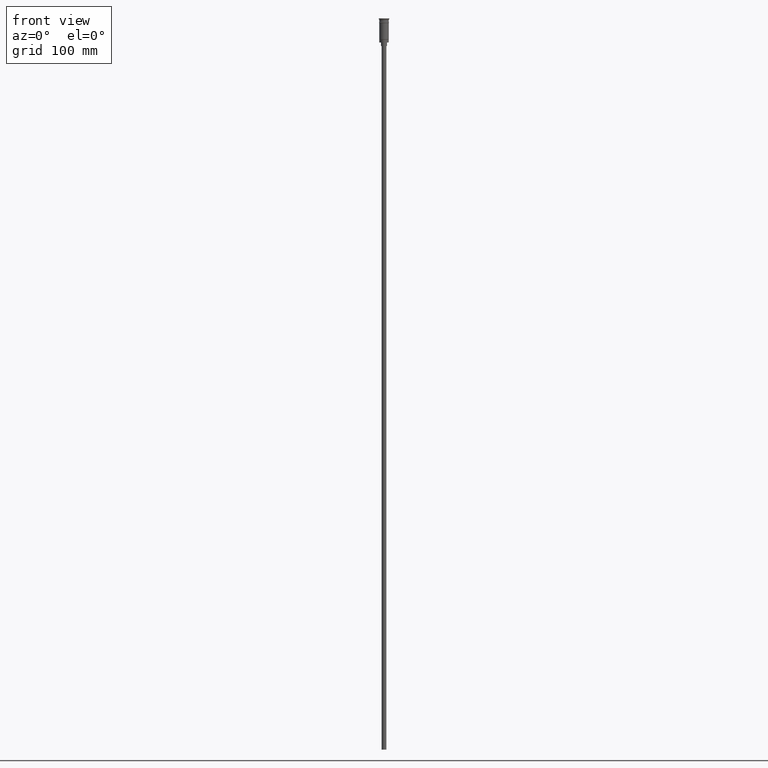
[diagram: clean part render]
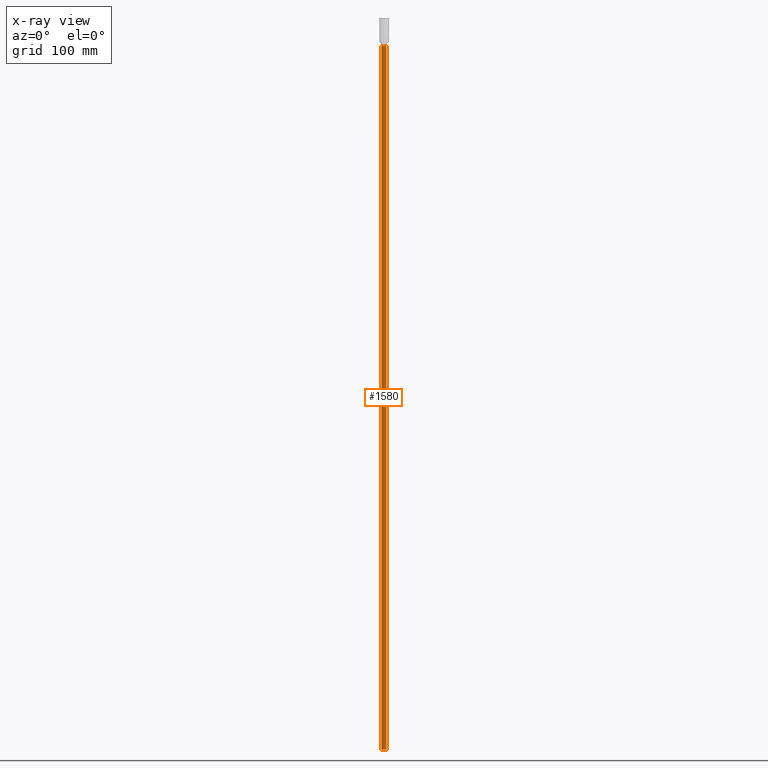
[diagram: x-ray — body ghosted, one internal face saturated and labeled with its STEP entity id]
A machine part, front view, then the same camera in x-ray: the body is ghosted and one INTERNAL B-rep face — a face not visible from any outside direction — is saturated and labeled: STEP entity #1580.
In plain terms, the highlighted cylindrical surface (edge-blend (fillet) strip) has radius 2 mm, axis along (-0, -0, 1).
Its self-contained STEP definition (entity closure, byte-faithful):
#61 = CIRCLE ( 'NONE', #945, 2.000000000000000000 ) ;
#88 = ORIENTED_EDGE ( 'NONE', *, *, #1273, .T. ) ;
#103 = CARTESIAN_POINT ( 'NONE',  ( -2.000000000000000000, 2.449293598294706414E-16, -620.4999999999998863 ) ) ;
#120 = EDGE_CURVE ( 'NONE', #228, #274, #61, .T. ) ;
#137 = VECTOR ( 'NONE', #415, 1000.000000000000000 ) ;
#138 = CARTESIAN_POINT ( 'NONE',  ( -2.000000000000000000, 2.449293598294706414E-16, -620.4999999999998863 ) ) ;
#159 = ORIENTED_EDGE ( 'NONE', *, *, #1588, .T. ) ;
#228 = VERTEX_POINT ( 'NONE', #393 ) ;
#255 = FACE_OUTER_BOUND ( 'NONE', #1486, .T. ) ;
#274 = VERTEX_POINT ( 'NONE', #138 ) ;
#328 = DIRECTION ( 'NONE',  ( -0.000000000000000000, -0.000000000000000000, 1.000000000000000000 ) ) ;
#342 = VERTEX_POINT ( 'NONE', #676 ) ;
#370 = CARTESIAN_POINT ( 'NONE',  ( 0.000000000000000000, 0.000000000000000000, -620.4999999999998863 ) ) ;
#374 = EDGE_CURVE ( 'NONE', #274, #1073, #695, .T. ) ;
#393 = CARTESIAN_POINT ( 'NONE',  ( 2.000000000000000000, 0.000000000000000000, -620.4999999999998863 ) ) ;
#415 = DIRECTION ( 'NONE',  ( -0.000000000000000000, -0.000000000000000000, 1.000000000000000000 ) ) ;
#490 = CARTESIAN_POINT ( 'NONE',  ( 0.000000000000000000, 0.000000000000000000, -23.49999999999999645 ) ) ;
#538 = DIRECTION ( 'NONE',  ( -1.000000000000000000, 0.000000000000000000, 0.000000000000000000 ) ) ;
#676 = CARTESIAN_POINT ( 'NONE',  ( 2.000000000000000000, 0.000000000000000000, -23.49999999999999645 ) ) ;
#695 = LINE ( 'NONE', #103, #1026 ) ;
#730 = ORIENTED_EDGE ( 'NONE', *, *, #374, .F. ) ;
#772 = DIRECTION ( 'NONE',  ( 0.000000000000000000, 0.000000000000000000, -1.000000000000000000 ) ) ;
#845 = AXIS2_PLACEMENT_3D ( 'NONE', #370, #851, #1367 ) ;
#851 = DIRECTION ( 'NONE',  ( -0.000000000000000000, -0.000000000000000000, 1.000000000000000000 ) ) ;
#900 = CIRCLE ( 'NONE', #1219, 2.000000000000000000 ) ;
#903 = ORIENTED_EDGE ( 'NONE', *, *, #120, .F. ) ;
#906 = CARTESIAN_POINT ( 'NONE',  ( 0.000000000000000000, 0.000000000000000000, -620.4999999999998863 ) ) ;
#945 = AXIS2_PLACEMENT_3D ( 'NONE', #906, #772, #538 ) ;
#977 = CYLINDRICAL_SURFACE ( 'NONE', #845, 2.000000000000000000 ) ;
#1026 = VECTOR ( 'NONE', #328, 1000.000000000000000 ) ;
#1061 = DIRECTION ( 'NONE',  ( 0.000000000000000000, 0.000000000000000000, -1.000000000000000000 ) ) ;
#1073 = VERTEX_POINT ( 'NONE', #1582 ) ;
#1130 = LINE ( 'NONE', #1543, #137 ) ;
#1195 = DIRECTION ( 'NONE',  ( -1.000000000000000000, 0.000000000000000000, 0.000000000000000000 ) ) ;
#1219 = AXIS2_PLACEMENT_3D ( 'NONE', #490, #1061, #1195 ) ;
#1273 = EDGE_CURVE ( 'NONE', #228, #342, #1130, .T. ) ;
#1367 = DIRECTION ( 'NONE',  ( 1.000000000000000000, 0.000000000000000000, 0.000000000000000000 ) ) ;
#1486 = EDGE_LOOP ( 'NONE', ( #730, #903, #88, #159 ) ) ;
#1543 = CARTESIAN_POINT ( 'NONE',  ( 2.000000000000000000, 0.000000000000000000, -620.4999999999998863 ) ) ;
#1580 = ADVANCED_FACE ( 'NONE', ( #255 ), #977, .T. ) ;
#1582 = CARTESIAN_POINT ( 'NONE',  ( -2.000000000000000000, 2.449293598294706414E-16, -23.49999999999999645 ) ) ;
#1588 = EDGE_CURVE ( 'NONE', #342, #1073, #900, .T. ) ;